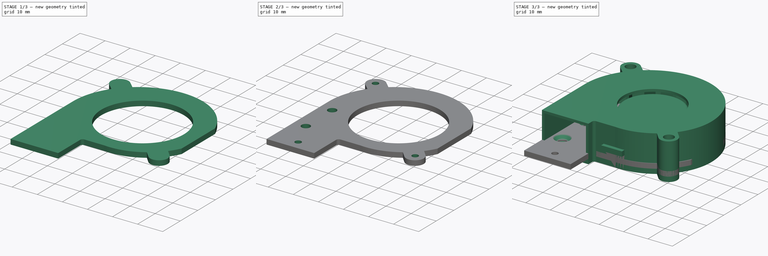
[diagram: build sequence overview — one tinted view per stage of 3, left to right]
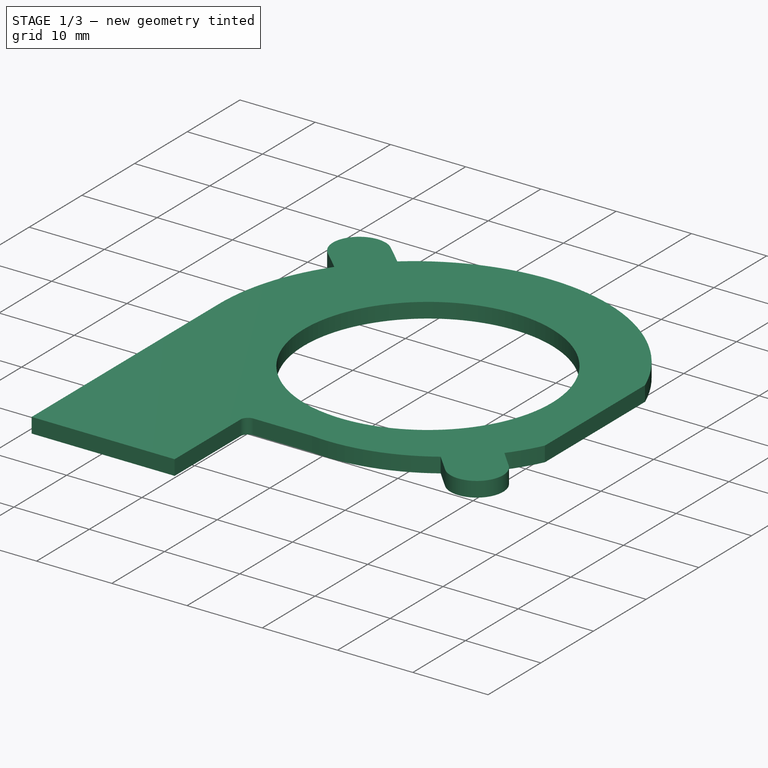
[diagram: stage 1 of 3 — iso view after this stage's code; geometry added in this stage tinted green]
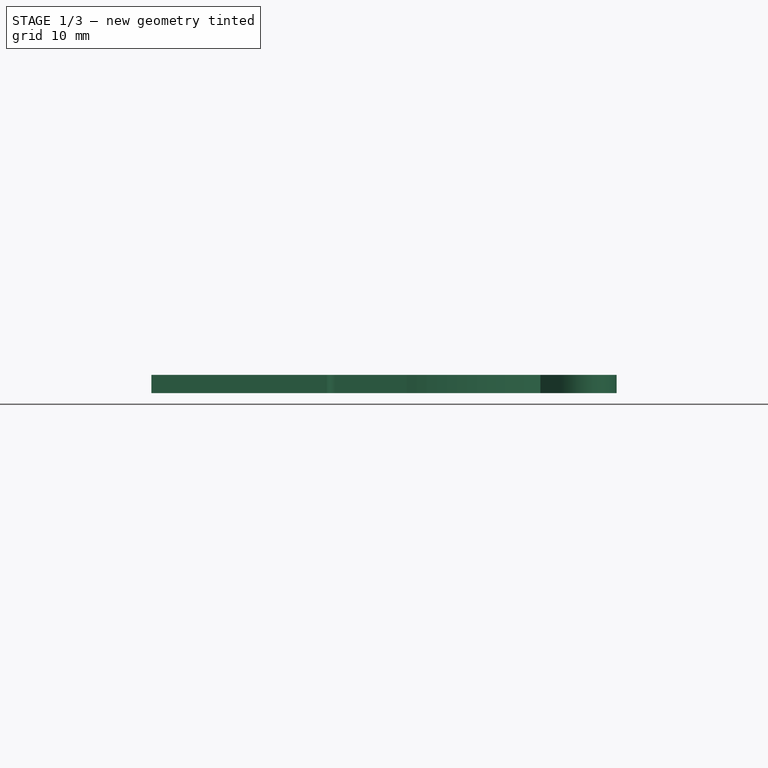
[diagram: stage 1 of 3 — front view after this stage's code; geometry added in this stage tinted green]
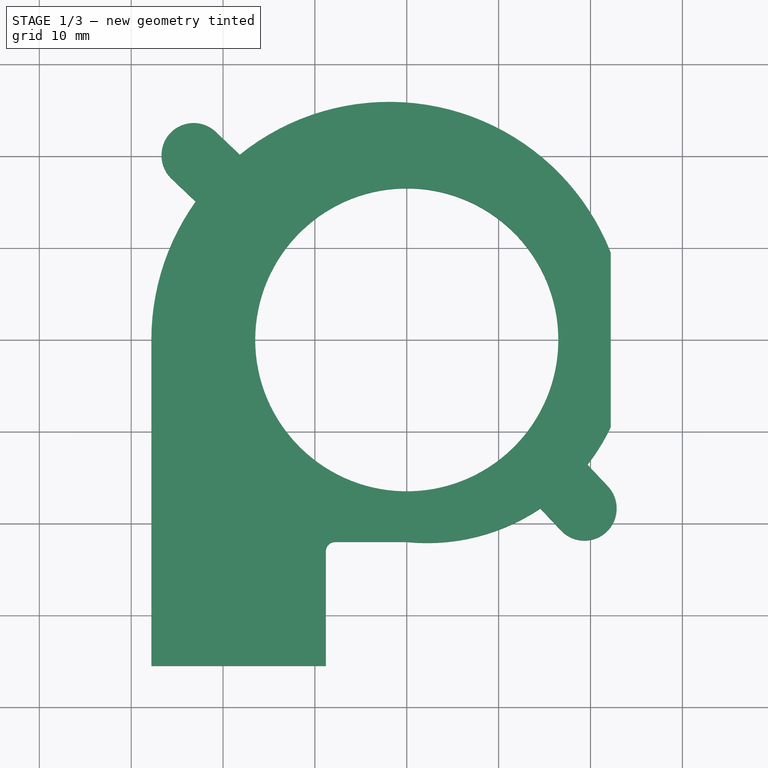
[diagram: stage 1 of 3 — top view after this stage's code; geometry added in this stage tinted green]
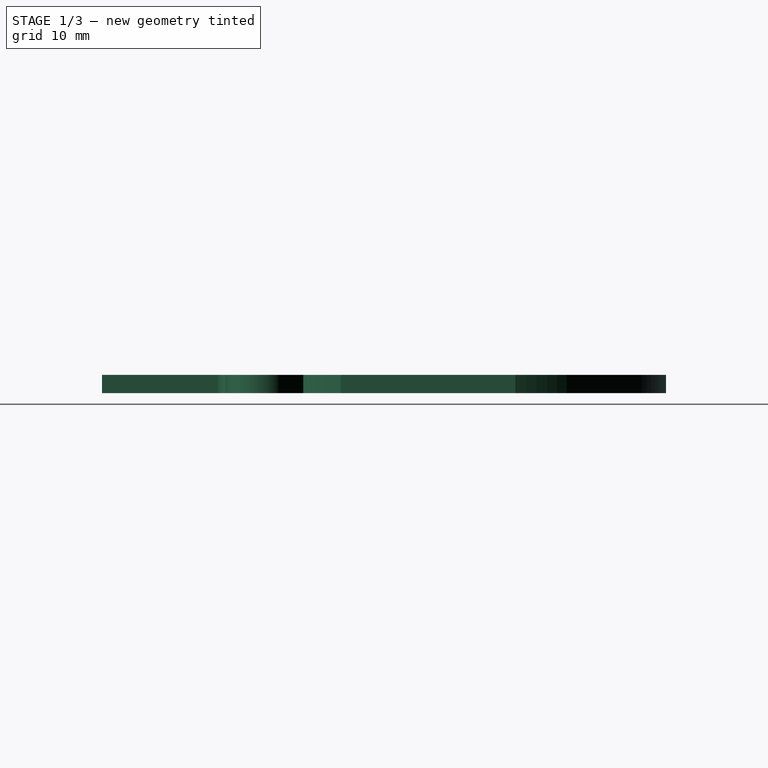
[diagram: stage 1 of 3 — right view after this stage's code; geometry added in this stage tinted green]
FCSTD DOCUMENT  (FreeCAD 0.14R3702 (Git))
Label: Extruder-blower-support
License: CC-BY 3.0
LicenseURL: http://creativecommons.org/licenses/by/3.0/
objects: Sketcher::SketchObject×3, Part::Feature×2, PartDesign::Pocket×2, Part::Compound×1, PartDesign::Pad×1, Part::Chamfer×1
note: 13 computed .brp shape members not serialized (recipe doc carries the construction recipe); baked Part::Feature solids carry a one-line shape summary decoded from their .brp

FEATURE [Sketcher::SketchObject] Sketch  label="main-body-sketch"
  sketch-geometry (23):
    g0: LineSegment [constr] StartX=-27.8048 StartY=0 StartZ=0 EndX=23.9952 EndY=0 EndZ=0
    g1: ArcOfCircle CenterX=-1.9 CenterY=0 CenterZ=0 NormalX=0 NormalY=0 NormalZ=1 Radius=25.9048 StartAngle=0.375488 EndAngle=2.2502
    g2: LineSegment StartX=-27.8048 StartY=0 StartZ=0 EndX=-27.8048 EndY=-35.5 EndZ=0
    g3: LineSegment StartX=-27.8048 StartY=-35.5 StartZ=0 EndX=-8.80483 EndY=-35.5 EndZ=0
    g4: LineSegment StartX=-7.80483 StartY=-22 StartZ=0 EndX=0 EndY=-22 EndZ=0
    g5: LineSegment StartX=-8.80483 StartY=-23 StartZ=0 EndX=-8.80483 EndY=-35.5 EndZ=0
    g6: ArcOfCircle CenterX=2.23176 CenterY=0 CenterZ=0 NormalX=0 NormalY=0 NormalZ=1 Radius=22.1129 StartAngle=4.61129 EndAngle=5.30328
    g7: ArcOfCircle CenterX=-7.80483 CenterY=-23 CenterZ=0 NormalX=0 NormalY=0 NormalZ=1 Radius=1 StartAngle=1.5708 EndAngle=3.14159
    g8: LineSegment [constr] StartX=16.8 StartY=-20.7501 StartZ=0 EndX=21.8944 EndY=-15.9494 EndZ=0
    g9: Circle [constr] CenterX=19.4 CenterY=-18.3 CenterZ=0 NormalX=0 NormalY=0 NormalZ=1 Radius=2
    g10: LineSegment StartX=14.551 StartY=-18.3635 StartZ=0 EndX=16.8 EndY=-20.7501 EndZ=0
    g11: LineSegment [constr] StartX=19.4 StartY=-18.3 StartZ=0 EndX=24.4 EndY=-18.3 EndZ=0
    g12: LineSegment StartX=19.6736 StartY=-13.5927 StartZ=0 EndX=21.8944 EndY=-15.9494 EndZ=0
    g13: ArcOfCircle CenterX=19.3472 CenterY=-18.3498 CenterZ=0 NormalX=0 NormalY=0 NormalZ=1 Radius=3.5 StartAngle=3.89732 EndAngle=7.03891
    g14: ArcOfCircle CenterX=2.23176 CenterY=0 CenterZ=0 NormalX=0 NormalY=0 NormalZ=1 Radius=22.1129 StartAngle=5.62118 EndAngle=5.83912
    g15: Circle [constr] CenterX=-23.2 CenterY=20.1 CenterZ=0 NormalX=0 NormalY=0 NormalZ=1 Radius=2
    g16: LineSegment [constr] StartX=-25.6122 StartY=17.564 StartZ=0 EndX=-20.7878 EndY=22.636 EndZ=0
    g17: LineSegment [constr] StartX=-23.2 StartY=20.1 StartZ=0 EndX=-19.2 EndY=20.1 EndZ=0
    g18: LineSegment StartX=-20.7878 StartY=22.636 StartZ=0 EndX=-18.1768 EndY=20.1525 EndZ=0
    g19: LineSegment StartX=-25.6122 StartY=17.564 StartZ=0 EndX=-22.9783 EndY=15.0587 EndZ=0
    g20: ArcOfCircle CenterX=-1.9 CenterY=0 CenterZ=0 NormalX=0 NormalY=0 NormalZ=1 Radius=25.9048 StartAngle=2.52125 EndAngle=3.14159
    g21: ArcOfCircle CenterX=-23.2 CenterY=20.1 CenterZ=0 NormalX=0 NormalY=0 NormalZ=1 Radius=3.5 StartAngle=0.810426 EndAngle=3.95202
    g22: LineSegment StartX=22.2 StartY=9.5 StartZ=0 EndX=22.2 EndY=-9.5 EndZ=0
  constraints (71):
    c: Horizontal(g0)
    c: DistanceX(g0) = 51.8
    c: PointOnObject(g1,g0)
    c: Coincident(g20,g0)
    c: DistanceX(g-1,g1) = -1.9
    c: PointOnObject(g1,g-1)
    c: Vertical(g2)
    c: Tangent(g2,g1)
    c: Coincident(g2,g0)
    c: DistanceY(g2) = -35.5
    c: Horizontal(g3)
    c: Coincident(g3,g2)
    c: DistanceX(g3) = 19
    c: Horizontal(g4)
    c: Vertical(g5)
    c: Coincident(g5,g3)
    c: PointOnObject(g4,g-2)
    c: Coincident(g6,g4)
    c: PointOnObject(g6,g0)
    c: Tangent(g4,g7)
    c: Tangent(g5,g7)
    c: Radius(g7) = 1
    c: DistanceY(g4,g3) = -13.5
    c: Distance(g8) = 7
    c: DistanceX(g-1,g9) = 19.4
    c: DistanceY(g-1,g9) = -18.3
    c: PointOnObject(g9,g8)
    c: Coincident(g10,g8)
    c: Perpendicular(g10,g8)
    c: Horizontal(g11)
    c: Coincident(g11,g9)
    c: DistanceX(g11) = 5
    c: Angle(g11,g8) = 0.755728
    c: DistanceX(g8,g9) = 2.6
    c: Radius(g9) = 2
    c: Coincident(g12,g8)
    c: Parallel(g12,g10)
    c: Coincident(g13,g8)
    c: Coincident(g13,g8)
    c: Radius(g13) = 3.5
    c: Equal(g6,g14)
    c: Coincident(g6,g10)
    c: Coincident(g14,g12)
    c: Coincident(g6,g14)
    c: Radius(g15) = 2
    c: DistanceX(g-1,g15) = -23.2
    c: DistanceY(g-1,g15) = 20.1
    c: PointOnObject(g15,g16)
    c: Distance(g16) = 7
    c: Symmetric(g16,g16,g15)
    c: Horizontal(g17)
    c: Coincident(g17,g15)
    c: DistanceX(g17) = 4
    c: Angle(g16,g17) = 2.33117
    c: Coincident(g18,g16)
    c: Perpendicular(g18,g16)
    c: Parallel(g19,g18)
    c: Coincident(g19,g16)
    c: Equal(g1,g20)
    c: Coincident(g1,g18)
    c: Coincident(g20,g19)
    c: Coincident(g1,g20)
    c: Coincident(g21,g16)
    c: Coincident(g21,g16)
    c: Radius(g21) = 3.5
    c: Vertical(g22)
    c: Coincident(g1,g22)
    c: Coincident(g14,g22)
    c: DistanceY(g22) = -19
    c: Symmetric(g1,g14,g0)
    c: DistanceX(g-1,g1) = 22.2
FEATURE [PartDesign::Pad] Pad  label="main-body"
  Length = 2
  Length2 = 100
  Sketch = -> Sketch
  Type = 0
FEATURE [Sketcher::SketchObject] Sketch001  label="top-cuttout-sketch"
  Placement = pos=(0,0,2) rot=(0,0,1;0rad)
  Support = -> Pad [Face18]
  sketch-geometry (1):
    g0: Circle CenterX=0 CenterY=0 CenterZ=0 NormalX=0 NormalY=0 NormalZ=1 Radius=16.5
  constraints (2):
    c: Coincident(g0,g-1)
    c: Radius(g0) = 16.5
FEATURE [PartDesign::Pocket] Pocket  label="top-cutout"
  Length = 5
  Sketch = -> Sketch001
  Type = 1
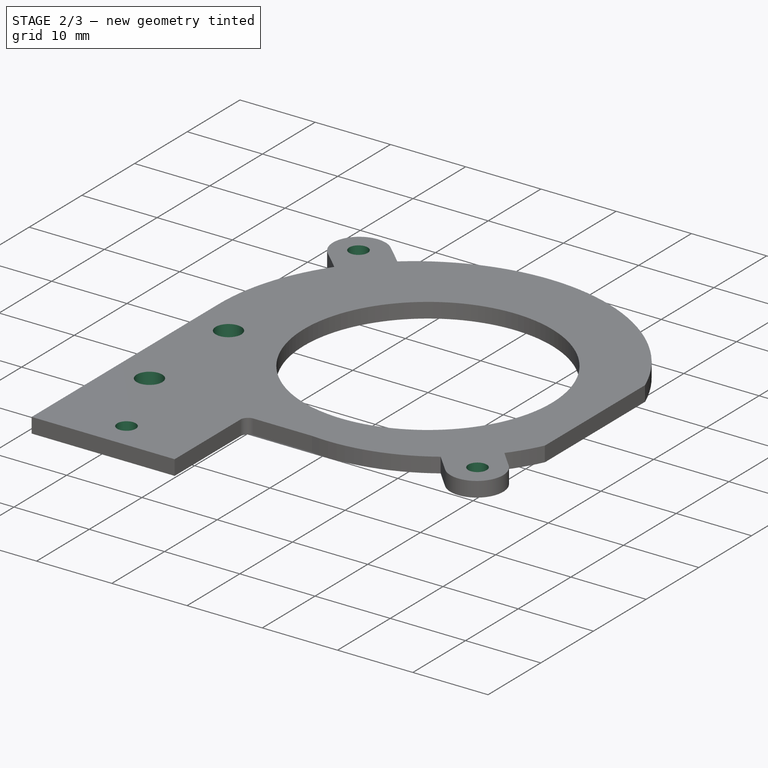
[diagram: stage 2 of 3 — iso view after this stage's code; geometry added in this stage tinted green]
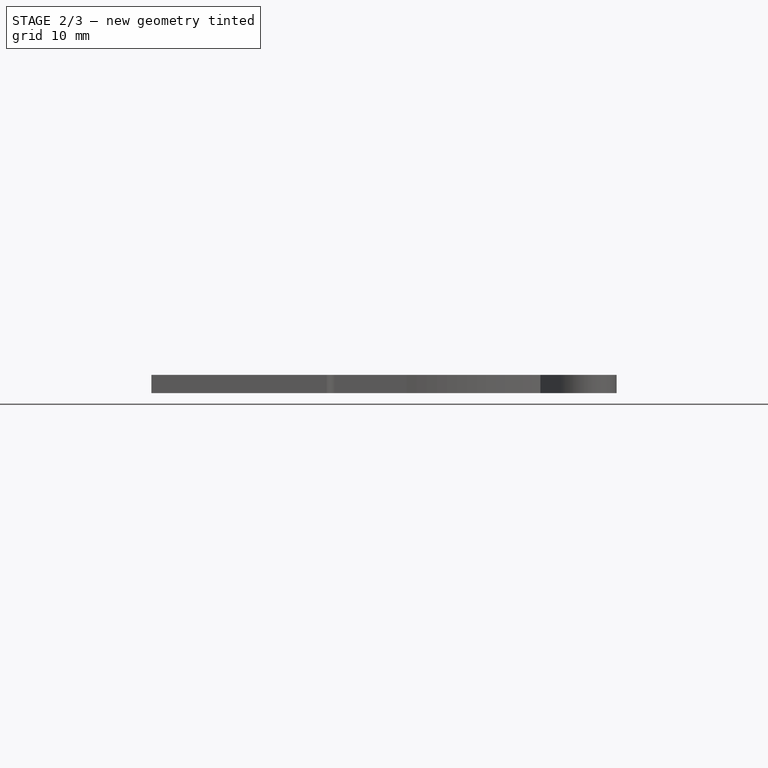
[diagram: stage 2 of 3 — front view after this stage's code; geometry added in this stage tinted green]
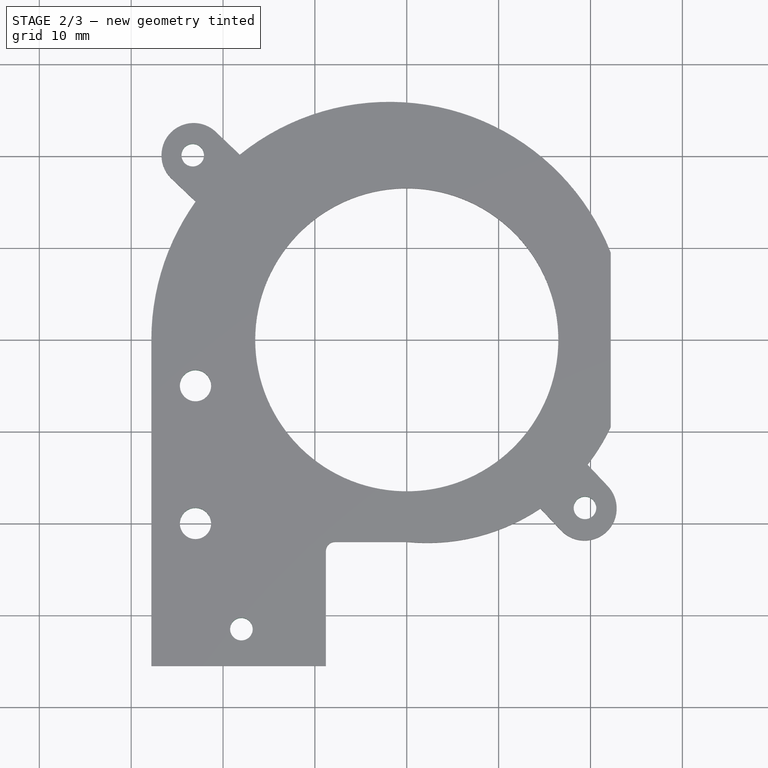
[diagram: stage 2 of 3 — top view after this stage's code; geometry added in this stage tinted green]
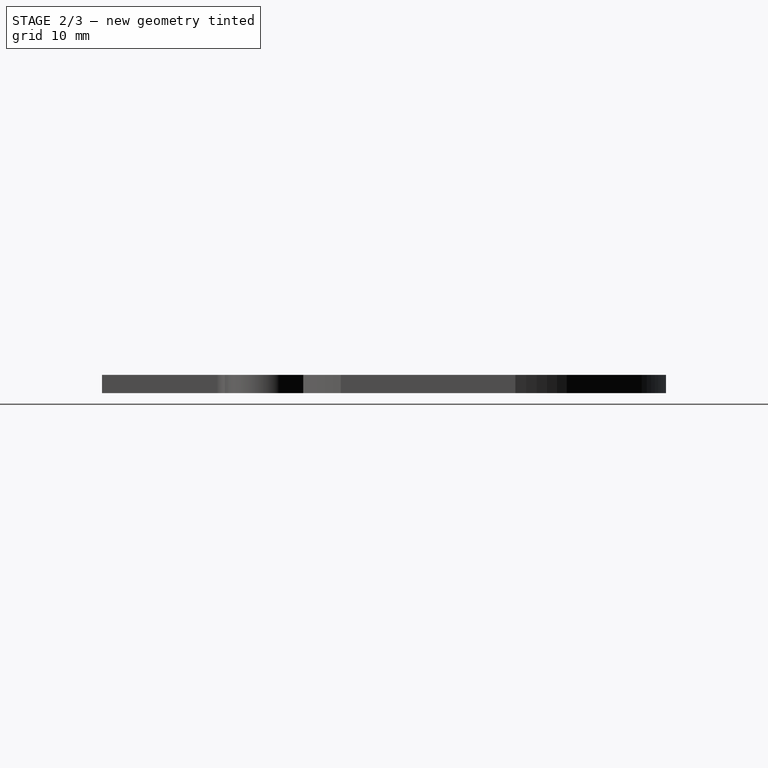
[diagram: stage 2 of 3 — right view after this stage's code; geometry added in this stage tinted green]
FEATURE [Sketcher::SketchObject] Sketch002  label="drills-sketch"
  Placement = pos=(0,0,2) rot=(0,0,1;0rad)
  Support = -> Pocket [Face5]
  sketch-geometry (6):
    g0: Circle CenterX=-23.3 CenterY=20.1 CenterZ=0 NormalX=0 NormalY=0 NormalZ=1 Radius=1.23
    g1: Circle CenterX=19.4 CenterY=-18.3 CenterZ=0 NormalX=0 NormalY=0 NormalZ=1 Radius=1.23
    g2: Circle CenterX=-23 CenterY=-5 CenterZ=0 NormalX=0 NormalY=0 NormalZ=1 Radius=1.7
    g3: Circle CenterX=-23 CenterY=-20 CenterZ=0 NormalX=0 NormalY=0 NormalZ=1 Radius=1.7
    g4: LineSegment [constr] StartX=-23 StartY=-5 StartZ=0 EndX=-23 EndY=-20 EndZ=0
    g5: Circle CenterX=-18 CenterY=-31.5 CenterZ=0 NormalX=0 NormalY=0 NormalZ=1 Radius=1.23
  constraints (17):
    c: DistanceX(g-1,g0) = -23.3
    c: DistanceY(g-1,g0) = 20.1
    c: DistanceX(g-1,g1) = 19.4
    c: DistanceY(g-1,g1) = -18.3
    c: Radius(g0) = 1.23
    c: Equal(g1,g0)
    c: Equal(g3,g2)
    c: DistanceX(g-1,g2) = -23
    c: DistanceY(g-1,g2) = -5
    c: Vertical(g4)
    c: Coincident(g4,g2)
    c: Coincident(g4,g3)
    c: DistanceY(g4) = -15
    c: DistanceX(g-1,g5) = -18
    c: DistanceY(g-1,g5) = -31.5
    c: Radius(g2) = 1.7
    c: Radius(g5) = 1.23
FEATURE [PartDesign::Pocket] Pocket001  label="drills"
  Length = 5
  Sketch = -> Sketch002
  Type = 1
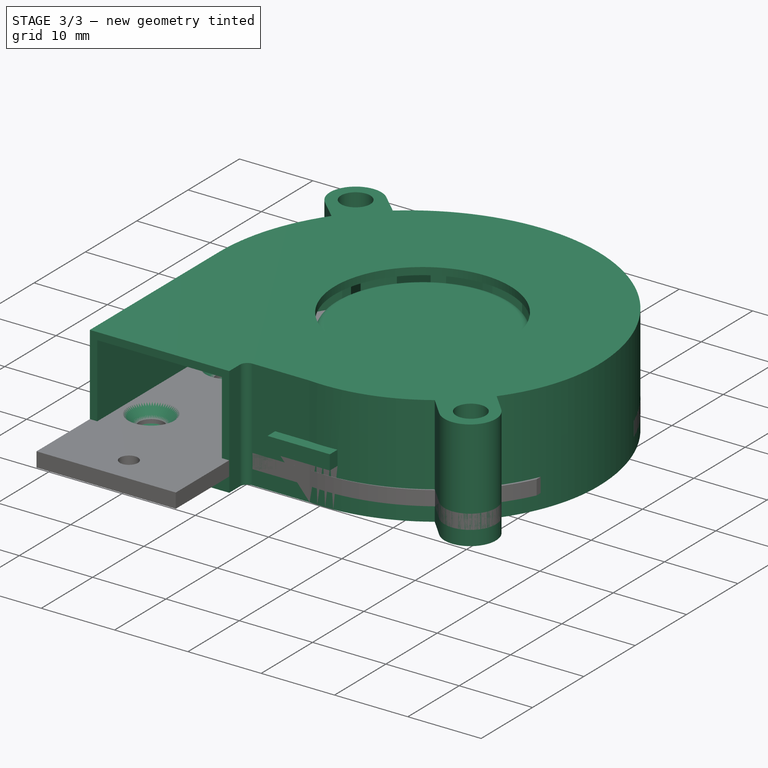
[diagram: stage 3 of 3 — iso view after this stage's code; geometry added in this stage tinted green]
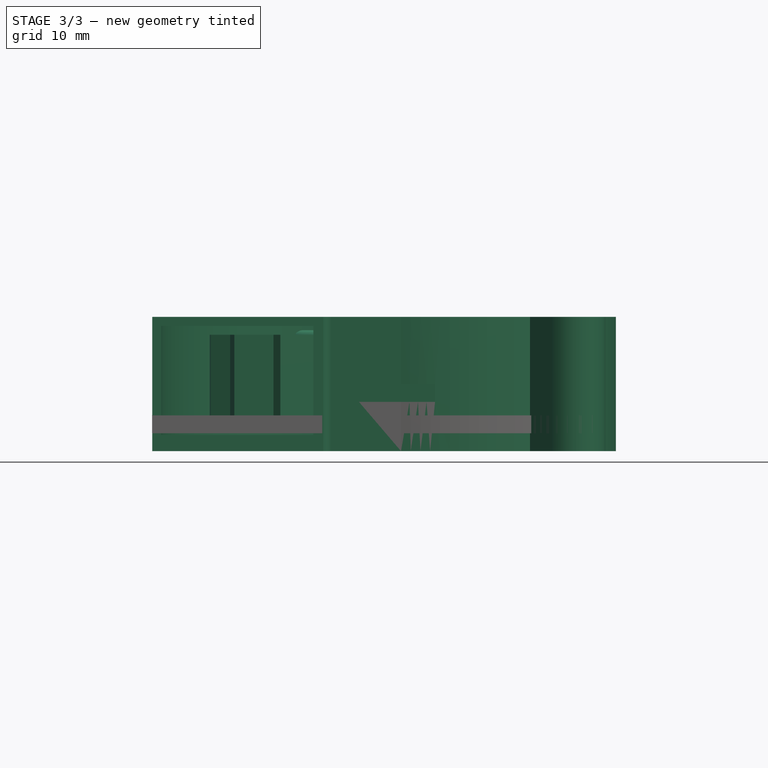
[diagram: stage 3 of 3 — front view after this stage's code; geometry added in this stage tinted green]
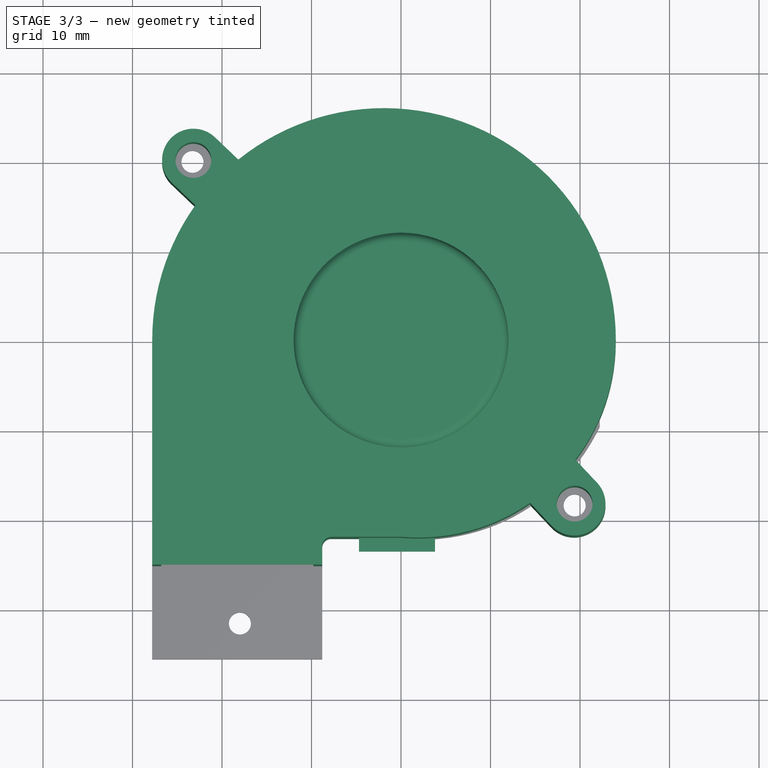
[diagram: stage 3 of 3 — top view after this stage's code; geometry added in this stage tinted green]
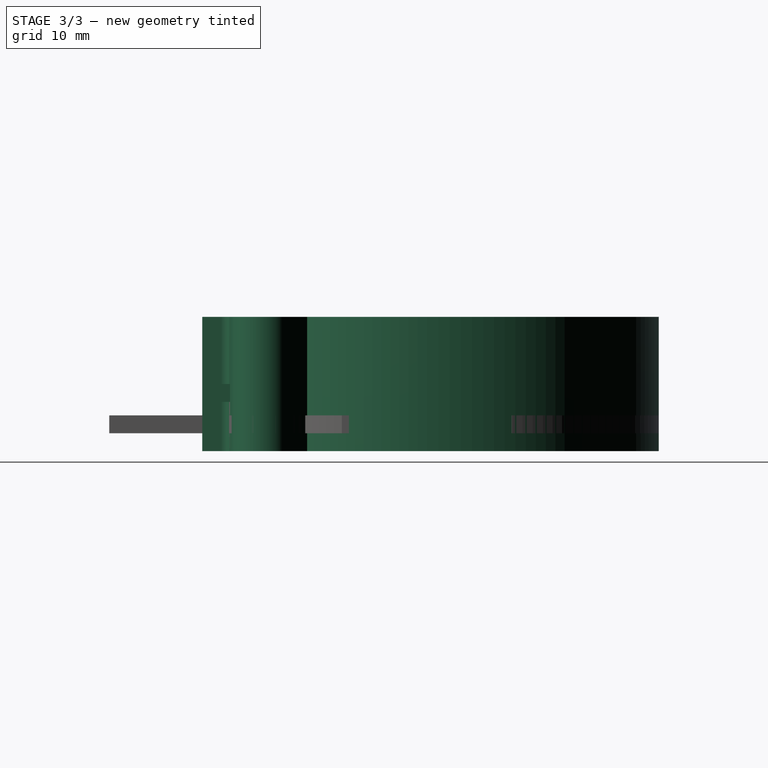
[diagram: stage 3 of 3 — right view after this stage's code; geometry added in this stage tinted green]
FEATURE [Part::Feature] Part__Feature  label="Extruder_blower-support"
  Placement = pos=(4.7,-2.7,25.5) rot=(0,-1,0;1.5708rad)
  shape: bbox 50.71 x 61.51 x 2.01 mm, 27 faces (baked)
FEATURE [Part::Compound] Compound  label="Blower-50x50-final"
FEATURE [Part::Chamfer] Chamfer
  Base = -> Pocket001
  Edges = 2 edges r=1.45: [Edge44,Edge46]
FEATURE [Part::Feature] Chamfer001  label="Extruder-blower-support-final"
  shape: bbox 50.65 x 61.4 x 2 mm, 26 faces (baked)
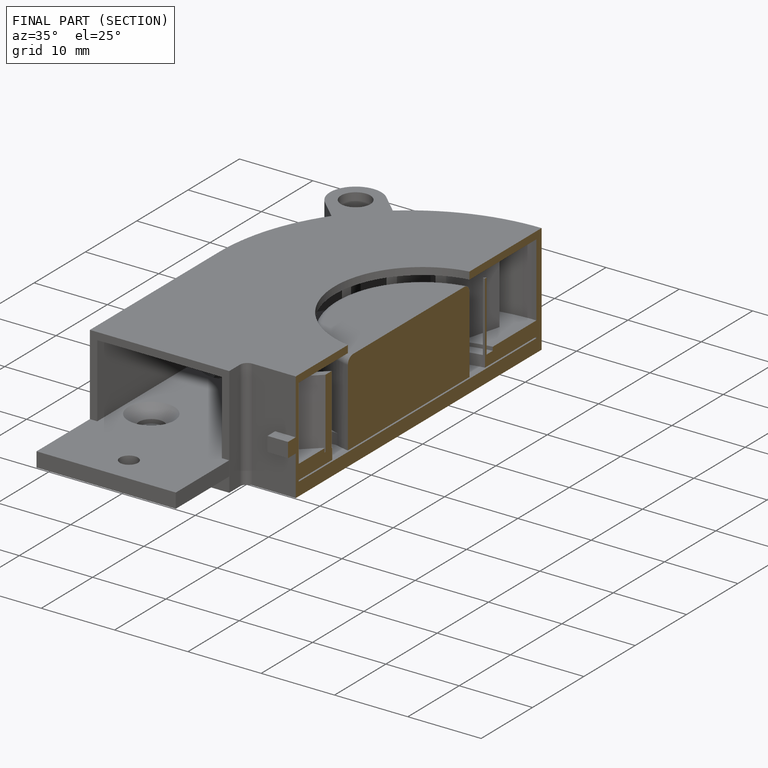
[diagram: finished part — half-section view (interior)]
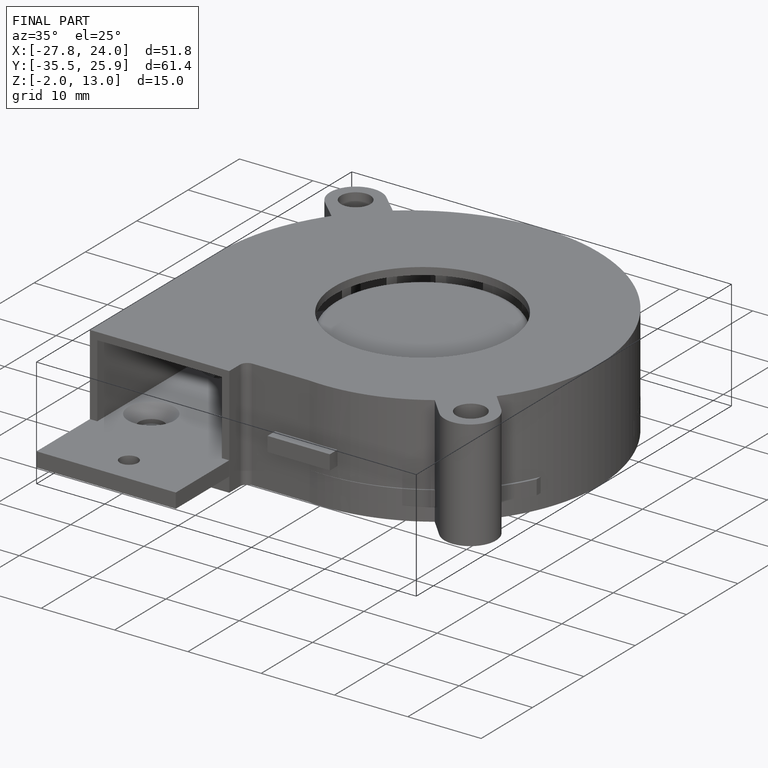
[diagram: finished part — iso view with bounding-box wireframe]
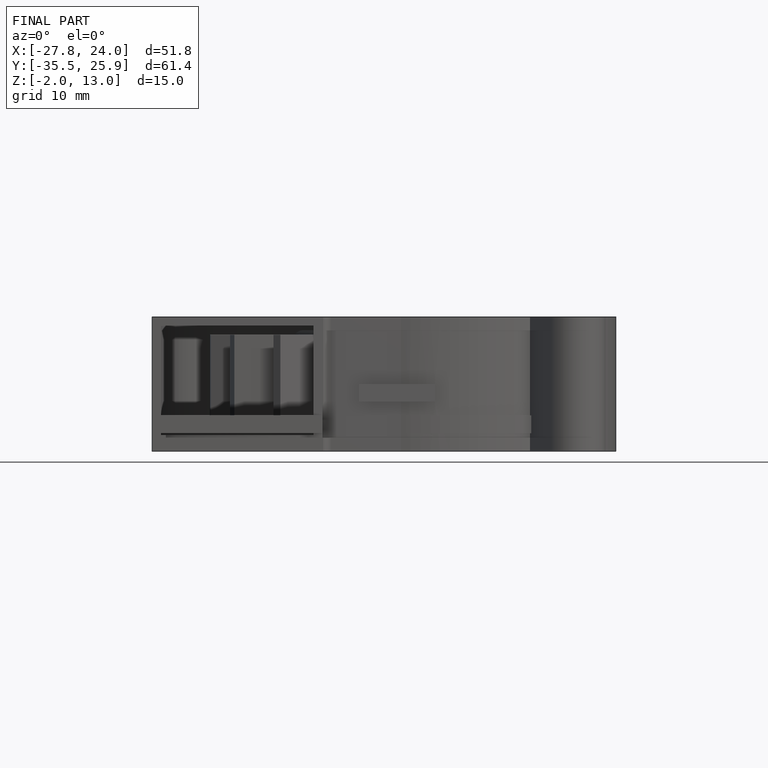
[diagram: finished part — front view with bounding-box wireframe]
